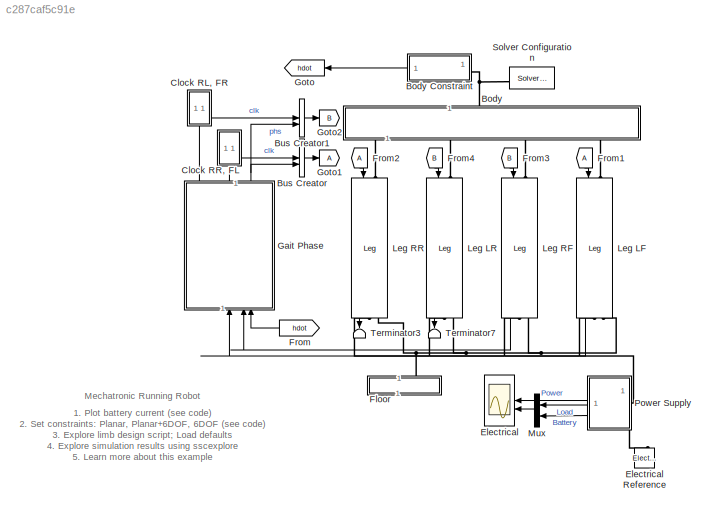
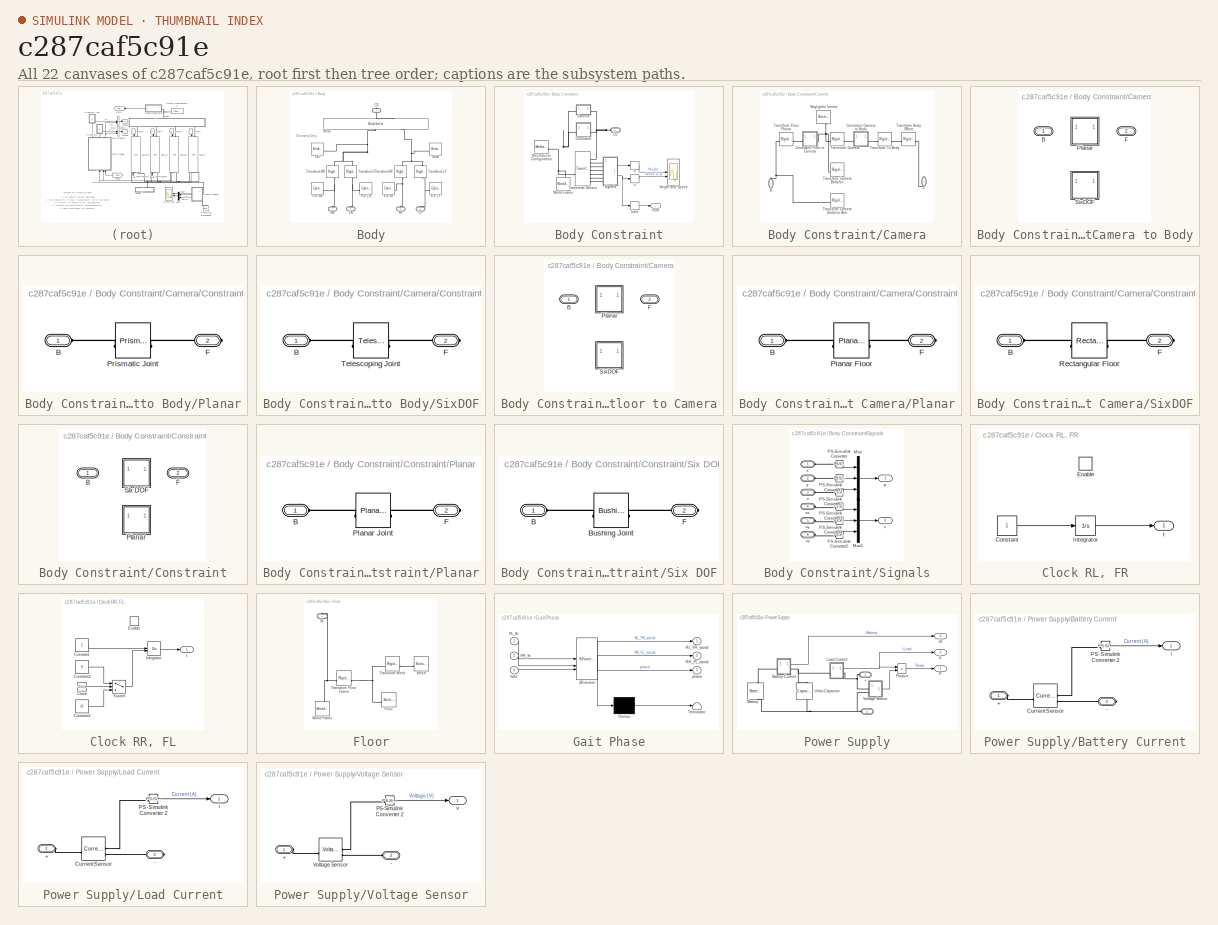
[diagram: thumbnail index - all 22 canvases of the model, root first then tree order]
MODEL slx_c287caf5c91e
KIND model
CONFIG AbsTol = 1e-4
CONFIG EnableMultiTasking = on
CONFIG InitFcn = d2r = pi/180;\nr2d = 180/pi;\nif (~exist('t_final'))\n  sm_robot_run_4legs_param_def_load(bdroot)\nend
CONFIG MaxStep = 0.01
CONFIG SolverName = ode15s
CONFIG StopTime = t_final
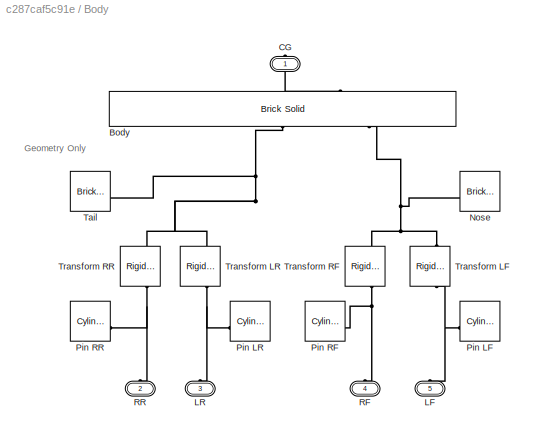
BLOCK [SubSystem] Body
  NameLocation = right
  Tag = CustomStyle
BLOCK [SubSystem] Body Constraint
BLOCK [PMIOPort] Body Constraint/CG
  Side = Left
BLOCK [SubSystem] Body Constraint/Camera
BLOCK [PMIOPort] Body Constraint/Camera/B
  NameLocation = right
  Port = 2
  Side = Left
BLOCK [SubSystem] Body Constraint/Camera/Constraint Camera to Body
  AttributesFormatString = %<ActiveVariant>
  LabelModeActiveChoice = Planar
  Variant = on
  VariantControl = Variant1
  VariantControlMode = label
BLOCK [PMIOPort] Body Constraint/Camera/Constraint Camera to Body/ B 
  Side = Left
BLOCK [PMIOPort] Body Constraint/Camera/Constraint Camera to Body/ F 
  Port = 2
  Side = Right
BLOCK [SubSystem] Body Constraint/Camera/Constraint Camera to Body/Planar
  VariantControl = Planar
BLOCK [PMIOPort] Body Constraint/Camera/Constraint Camera to Body/Planar/B
  Side = Left
BLOCK [PMIOPort] Body Constraint/Camera/Constraint Camera to Body/Planar/F
  Port = 2
  Side = Right
BLOCK [Reference] Body Constraint/Camera/Constraint Camera to Body/Planar/Prismatic Joint  REF=sm_lib/Joints/Prismatic
Joint
  SourceBlock = sm_lib/Joints/Prismatic\nJoint
  SourceType = Prismatic\nJoint
BLOCK [SubSystem] Body Constraint/Camera/Constraint Camera to Body/SixDOF
  VariantControl = Six_DOF
BLOCK [PMIOPort] Body Constraint/Camera/Constraint Camera to Body/SixDOF/B
  Side = Left
BLOCK [PMIOPort] Body Constraint/Camera/Constraint Camera to Body/SixDOF/F
  Port = 2
  Side = Right
BLOCK [Reference] Body Constraint/Camera/Constraint Camera to Body/SixDOF/Telescoping Joint  REF=sm_lib/Joints/Telescoping
Joint
  SourceBlock = sm_lib/Joints/Telescoping\nJoint
  SourceType = Telescoping\nJoint
BLOCK [SubSystem] Body Constraint/Camera/Constraint Floor to Camera
  AttributesFormatString = %<ActiveVariant>
  LabelModeActiveChoice = Planar
  Variant = on
  VariantControl = Variant1
  VariantControlMode = label
BLOCK [PMIOPort] Body Constraint/Camera/Constraint Floor to Camera/ B 
  Side = Left
BLOCK [PMIOPort] Body Constraint/Camera/Constraint Floor to Camera/ F 
  Port = 2
  Side = Right
BLOCK [SubSystem] Body Constraint/Camera/Constraint Floor to Camera/Planar
  VariantControl = Planar
BLOCK [PMIOPort] Body Constraint/Camera/Constraint Floor to Camera/Planar/B
  Side = Left
BLOCK [PMIOPort] Body Constraint/Camera/Constraint Floor to Camera/Planar/F
  Port = 2
  Side = Right
BLOCK [Reference] Body Constraint/Camera/Constraint Floor to Camera/Planar/Planar Floor  REF=sm_lib/Joints/Planar Joint
  SourceBlock = sm_lib/Joints/Planar Joint
  SourceType = Planar Joint
BLOCK [SubSystem] Body Constraint/Camera/Constraint Floor to Camera/SixDOF
  VariantControl = Six_DOF
BLOCK [PMIOPort] Body Constraint/Camera/Constraint Floor to Camera/SixDOF/B
  Side = Left
BLOCK [PMIOPort] Body Constraint/Camera/Constraint Floor to Camera/SixDOF/F
  Port = 2
  Side = Right
BLOCK [Reference] Body Constraint/Camera/Constraint Floor to Camera/SixDOF/Rectangular Floor  REF=sm_lib/Joints/Rectangular
Joint
  SourceBlock = sm_lib/Joints/Rectangular\nJoint
  SourceType = Rectangular\nJoint
BLOCK [PMIOPort] Body Constraint/Camera/F
  NameLocation = left
  Side = Right
BLOCK [Reference] Body Constraint/Camera/Negligible Inertia  REF=sm_lib/Body Elements/Brick Solid
  NameLocation = left
  SourceBlock = sm_lib/Body Elements/Brick Solid
  SourceType = Brick Solid
BLOCK [Reference] Body Constraint/Camera/Transform Body Offset  REF=sm_lib/Frames and
Transforms/Rigid
Transform
  SourceBlock = sm_lib/Frames and\nTransforms/Rigid\nTransform
  SourceType = Rigid\nTransform
BLOCK [Reference] Body Constraint/Camera/Transform Camera  REF=sm_lib/Frames and
Transforms/Rigid
Transform
  SourceBlock = sm_lib/Frames and\nTransforms/Rigid\nTransform
  SourceType = Rigid\nTransform
BLOCK [Reference] Body Constraint/Camera/Transform Camera BodyIso  REF=sm_lib/Frames and
Transforms/Rigid
Transform
  SourceBlock = sm_lib/Frames and\nTransforms/Rigid\nTransform
  SourceType = Rigid\nTransform
BLOCK [Reference] Body Constraint/Camera/Transform Camera BodyIso Aim  REF=sm_lib/Frames and
Transforms/Rigid
Transform
  SourceBlock = sm_lib/Frames and\nTransforms/Rigid\nTransform
  SourceType = Rigid\nTransform
BLOCK [Reference] Body Constraint/Camera/Transform Floor Planar  REF=sm_lib/Frames and
Transforms/Rigid
Transform
  SourceBlock = sm_lib/Frames and\nTransforms/Rigid\nTransform
  SourceType = Rigid\nTransform
BLOCK [Reference] Body Constraint/Camera/Transform To Body  REF=sm_lib/Frames and
Transforms/Rigid
Transform
  SourceBlock = sm_lib/Frames and\nTransforms/Rigid\nTransform
  SourceType = Rigid\nTransform
BLOCK [SubSystem] Body Constraint/Constraint
  AttributesFormatString = %<ActiveVariant>
  LabelModeActiveChoice = Planar
  Variant = on
  VariantControl = Variant1
  VariantControlMode = label
BLOCK [PMIOPort] Body Constraint/Constraint/ B 
  Side = Left
BLOCK [PMIOPort] Body Constraint/Constraint/ F 
  Port = 2
  Side = Right
BLOCK [SubSystem] Body Constraint/Constraint/Planar
  VariantControl = Planar
BLOCK [PMIOPort] Body Constraint/Constraint/Planar/B
  Side = Left
BLOCK [PMIOPort] Body Constraint/Constraint/Planar/F
  Port = 2
  Side = Right
BLOCK [Reference] Body Constraint/Constraint/Planar/Planar Joint  REF=sm_lib/Joints/Planar Joint
  SourceBlock = sm_lib/Joints/Planar Joint
  SourceType = Planar Joint
BLOCK [SubSystem] Body Constraint/Constraint/Six DOF
  VariantControl = Six_DOF
BLOCK [PMIOPort] Body Constraint/Constraint/Six DOF/B
  Side = Left
BLOCK [Reference] Body Constraint/Constraint/Six DOF/Bushing Joint  REF=sm_lib/Joints/Bushing Joint
  SourceBlock = sm_lib/Joints/Bushing Joint
  SourceType = Bushing Joint
BLOCK [PMIOPort] Body Constraint/Constraint/Six DOF/F
  Port = 2
  Side = Right
BLOCK [Scope] Body Constraint/Height and Speed
  ActiveDisplayYMaximum = 1.22878
  ActiveDisplayYMinimum = 0.80791
  DataLogging = on
  DataLoggingDecimateData = on
  DataLoggingDecimation = 1
  DataLoggingSaveFormat = Structure With Time
  DataLoggingVariableName = ScopeData1
  Floating = off
  GraphicalSettings = {"GraphicalSettings":{"LegacySettings":true,"Style":{"AxesScalingProperties":{"ScaleAxesLimitsAtStop":false},"Style":{"AxesColor":"[0 0 0]","ChannelNames":["",""],"ColorOrder":"[1 1 0.0666666666666667;0.0745098039215686 0.623529411764706 1;1 0.411764705882353 0.16078431372549;0.392156862745098 0.831372549019608 0.0745098039215686;0.717647058823529 0.274509803921569 1;0.0588235294117647 1 1;1 0.074...<+482ch>
  LayoutDimensionsString = [2 1]
  MultipleDisplayCache = [{"MaxYLimMag":1.22878,"MaxYLimReal":1.22878,"MinYLimMag":0.80791,"MinYLimReal":0.80791,"PlotAsMagnitudePhase":false,"ShowGrid":true,"ShowLegend":false,"Title":"%<SignalLabel>","YLabel":""},{"MaxYLimMag":1.1633,"MaxYLimReal":3.22318,"MinYLimMag":0.81519,"MinYLimReal":-2.56611,"PlotAsMagnitudePhase":false,"ShowGrid":true,"ShowLegend":false,"Title":"%<SignalLabel>","YLabel":""}]
  NumInputPorts = 2
  WasSavedAsWebScope = on
BLOCK [Reference] Body Constraint/Mechanism Configuration  REF=sm_lib/Utilities/Mechanism
Configuration
  SourceBlock = sm_lib/Utilities/Mechanism\nConfiguration
  SourceType = Mechanism\nConfiguration
BLOCK [SubSystem] Body Constraint/Signals
BLOCK [Mux] Body Constraint/Signals/Mux
  DisplayOption = bar
  Inputs = 3
BLOCK [Mux] Body Constraint/Signals/Mux1
  DisplayOption = bar
  Inputs = 3
BLOCK [Reference] Body Constraint/Signals/PS-Simulink Converter  REF=nesl_utility/PS-Simulink
Converter
  SourceBlock = nesl_utility/PS-Simulink\nConverter
  SourceType = PS-Simulink\nConverter
BLOCK [Reference] Body Constraint/Signals/PS-Simulink Converter1  REF=nesl_utility/PS-Simulink
Converter
  SourceBlock = nesl_utility/PS-Simulink\nConverter
  SourceType = PS-Simulink\nConverter
BLOCK [Reference] Body Constraint/Signals/PS-Simulink Converter2  REF=nesl_utility/PS-Simulink
Converter
  SourceBlock = nesl_utility/PS-Simulink\nConverter
  SourceType = PS-Simulink\nConverter
BLOCK [Reference] Body Constraint/Signals/PS-Simulink Converter3  REF=nesl_utility/PS-Simulink
Converter
  SourceBlock = nesl_utility/PS-Simulink\nConverter
  SourceType = PS-Simulink\nConverter
BLOCK [Reference] Body Constraint/Signals/PS-Simulink Converter4  REF=nesl_utility/PS-Simulink
Converter
  SourceBlock = nesl_utility/PS-Simulink\nConverter
  SourceType = PS-Simulink\nConverter
BLOCK [Reference] Body Constraint/Signals/PS-Simulink Converter5  REF=nesl_utility/PS-Simulink
Converter
  SourceBlock = nesl_utility/PS-Simulink\nConverter
  SourceType = PS-Simulink\nConverter
BLOCK [Outport] Body Constraint/Signals/p
  VectorParamsAs1DForOutWhenUnconnected = off
BLOCK [Outport] Body Constraint/Signals/v
  Port = 2
  VectorParamsAs1DForOutWhenUnconnected = off
BLOCK [PMIOPort] Body Constraint/Signals/vx
  Port = 4
  Side = Left
BLOCK [PMIOPort] Body Constraint/Signals/vy
  Port = 5
  Side = Left
BLOCK [PMIOPort] Body Constraint/Signals/vz
  Port = 6
  Side = Left
BLOCK [PMIOPort] Body Constraint/Signals/x
  Side = Left
BLOCK [PMIOPort] Body Constraint/Signals/y
  Port = 2
  Side = Left
BLOCK [PMIOPort] Body Constraint/Signals/z
  Port = 3
  Side = Left
BLOCK [Reference] Body Constraint/Transform Sensor  REF=sm_lib/Frames and
Transforms/Transform
Sensor
  SourceBlock = sm_lib/Frames and\nTransforms/Transform\nSensor
  SourceType = Transform\nSensor
BLOCK [Reference] Body Constraint/World Frame  REF=sm_lib/Frames and
Transforms/World Frame
  NameLocation = left
  SourceBlock = sm_lib/Frames and\nTransforms/World Frame
  SourceType = World Frame
BLOCK [Selector] Body Constraint/h
  IndexOptions = Index vector (dialog)
  Indices = 2
  InputPortWidth = 3
  NameLocation = top
  OutputSizes = 1
BLOCK [Outport] Body Constraint/hDot
  VectorParamsAs1DForOutWhenUnconnected = off
BLOCK [Selector] Body Constraint/hdot
  IndexOptions = Index vector (dialog)
  Indices = 2
  InputPortWidth = 3
  OutputSizes = 1
BLOCK [Selector] Body Constraint/u
  IndexOptions = Index vector (dialog)
  Indices = [1 2]
  InputPortWidth = 3
  OutputSizes = 1
BLOCK [Reference] Body/Body  REF=sm_lib/Body Elements/Brick Solid
  NameLocation = right
  SourceBlock = sm_lib/Body Elements/Brick Solid
  SourceType = Brick Solid
BLOCK [PMIOPort] Body/CG
  NameLocation = right
  Side = Right
BLOCK [PMIOPort] Body/LF
  NameLocation = right
  Port = 5
  Side = Left
BLOCK [PMIOPort] Body/LR
  NameLocation = right
  Port = 3
  Side = Left
BLOCK [Reference] Body/Nose  REF=sm_lib/Body Elements/Brick Solid
  SourceBlock = sm_lib/Body Elements/Brick Solid
  SourceType = Brick Solid
BLOCK [Reference] Body/Pin LF  REF=sm_lib/Body Elements/Cylindrical Solid
  SourceBlock = sm_lib/Body Elements/Cylindrical Solid
  SourceType = Cylindrical Solid
BLOCK [Reference] Body/Pin LR  REF=sm_lib/Body Elements/Cylindrical Solid
  SourceBlock = sm_lib/Body Elements/Cylindrical Solid
  SourceType = Cylindrical Solid
BLOCK [Reference] Body/Pin RF  REF=sm_lib/Body Elements/Cylindrical Solid
  SourceBlock = sm_lib/Body Elements/Cylindrical Solid
  SourceType = Cylindrical Solid
BLOCK [Reference] Body/Pin RR  REF=sm_lib/Body Elements/Cylindrical Solid
  SourceBlock = sm_lib/Body Elements/Cylindrical Solid
  SourceType = Cylindrical Solid
BLOCK [PMIOPort] Body/RF
  NameLocation = left
  Port = 4
  Side = Left
BLOCK [PMIOPort] Body/RR
  NameLocation = left
  Port = 2
  Side = Left
BLOCK [Reference] Body/Tail  REF=sm_lib/Body Elements/Brick Solid
  SourceBlock = sm_lib/Body Elements/Brick Solid
  SourceType = Brick Solid
BLOCK [Reference] Body/Transform LF  REF=sm_lib/Frames and
Transforms/Rigid
Transform
  NameLocation = right
  SourceBlock = sm_lib/Frames and\nTransforms/Rigid\nTransform
  SourceType = Rigid\nTransform
BLOCK [Reference] Body/Transform LR  REF=sm_lib/Frames and
Transforms/Rigid
Transform
  NameLocation = right
  SourceBlock = sm_lib/Frames and\nTransforms/Rigid\nTransform
  SourceType = Rigid\nTransform
BLOCK [Reference] Body/Transform RF  REF=sm_lib/Frames and
Transforms/Rigid
Transform
  NameLocation = left
  SourceBlock = sm_lib/Frames and\nTransforms/Rigid\nTransform
  SourceType = Rigid\nTransform
BLOCK [Reference] Body/Transform RR  REF=sm_lib/Frames and
Transforms/Rigid
Transform
  NameLocation = left
  SourceBlock = sm_lib/Frames and\nTransforms/Rigid\nTransform
  SourceType = Rigid\nTransform
BLOCK [BusCreator] Bus Creator
  DisplayOption = bar
  InheritFromInputs = on
  Inputs = 2
BLOCK [BusCreator] Bus Creator1
  DisplayOption = bar
  InheritFromInputs = on
  Inputs = 2
BLOCK [SubSystem] Clock RL, FR
  NameLocation = top
  TreatAsAtomicUnit = on
BLOCK [Constant] Clock RL, FR/Constant
BLOCK [EnablePort] Clock RL, FR/Enable
  StatesWhenEnabling = reset
BLOCK [Integrator] Clock RL, FR/Integrator
  InitialCondition = t0
BLOCK [Outport] Clock RL, FR/t
  InitialOutput = [0]
  OutputWhenDisabled = reset
  VectorParamsAs1DForOutWhenUnconnected = off
BLOCK [SubSystem] Clock RR, FL
  NameLocation = top
  TreatAsAtomicUnit = on
BLOCK [Clock] Clock RR, FL/Clock
BLOCK [Constant] Clock RR, FL/Constant
BLOCK [Constant] Clock RR, FL/Constant1
  Value = t0
BLOCK [Constant] Clock RR, FL/Constant2
  Value = 0
BLOCK [EnablePort] Clock RR, FL/Enable
  StatesWhenEnabling = reset
BLOCK [Integrator] Clock RR, FL/Integrator
  InitialCondition = t0
  InitialConditionSource = external
BLOCK [Switch] Clock RR, FL/Switch
  Criteria = u2 > Threshold
  InputSameDT = off
  SaturateOnIntegerOverflow = off
  Threshold = 0.1
BLOCK [Outport] Clock RR, FL/t
  InitialOutput = 0
  OutputWhenDisabled = reset
  VectorParamsAs1DForOutWhenUnconnected = off
BLOCK [Scope] Electrical
  ActiveDisplayYMaximum = 525.06229
  ActiveDisplayYMinimum = -181.58066
  DataLoggingDecimateData = on
  DataLoggingDecimation = 1
  DataLoggingSaveFormat = Structure With Time
  Floating = off
  GraphicalSettings = {"GraphicalSettings":{"LegacySettings":true,"Style":{"AxesScalingProperties":{"ScaleAxesLimitsAtStop":false},"Style":{"AxesColor":"[0 0 0]","ChannelNames":["",""],"ColorOrder":"[1 1 0.0666666666666667;0.0745098039215686 0.623529411764706 1;1 0.411764705882353 0.16078431372549;0.392156862745098 0.831372549019608 0.0745098039215686;0.717647058823529 0.274509803921569 1;0.0588235294117647 1 1;1 0.074...<+457ch>
  LayoutDimensionsString = [2 1]
  MultipleDisplayCache = [{"MaxYLimMag":525.06229,"MaxYLimReal":525.06229,"MinYLimMag":0,"MinYLimReal":-181.58066,"PlotAsMagnitudePhase":false,"ShowGrid":true,"ShowLegend":false,"Title":"%<SignalLabel>","YLabel":""},{"MaxYLimMag":10,"MaxYLimReal":27.98465,"MinYLimMag":0,"MinYLimReal":-8.90007,"PlotAsMagnitudePhase":false,"ShowGrid":true,"ShowLegend":true,"Title":"Current","YLabel":""}]
  NumInputPorts = 2
  WasSavedAsWebScope = on
  WindowPosition = [611 446 348 332]
BLOCK [Reference] Electrical Reference  REF=fl_lib/Electrical/Electrical Elements/Electrical Reference
  NameLocation = left
  SourceBlock = fl_lib/Electrical/Electrical Elements/Electrical Reference
  SourceType = Electrical Reference
BLOCK [SubSystem] Floor
  NameLocation = right
BLOCK [Reference] Floor/Floor  REF=sm_lib/Body Elements/Brick Solid
  NameLocation = top
  SourceBlock = sm_lib/Body Elements/Brick Solid
  SourceType = Brick Solid
BLOCK [Reference] Floor/Mesh  REF=sm_lib/Body Elements/Extruded Solid
  SourceBlock = sm_lib/Body Elements/Extruded Solid
  SourceType = Extruded Solid
BLOCK [Reference] Floor/Transform Floor Frame  REF=sm_lib/Frames and
Transforms/Rigid
Transform
  NameLocation = top
  SourceBlock = sm_lib/Frames and\nTransforms/Rigid\nTransform
  SourceType = Rigid\nTransform
BLOCK [Reference] Floor/Transform Mesh  REF=sm_lib/Frames and
Transforms/Rigid
Transform
  SourceBlock = sm_lib/Frames and\nTransforms/Rigid\nTransform
  SourceType = Rigid\nTransform
BLOCK [PMIOPort] Floor/W
  NameLocation = right
  Side = Right
BLOCK [Reference] Floor/World Frame  REF=sm_lib/Frames and
Transforms/World Frame
  NameLocation = right
  SourceBlock = sm_lib/Frames and\nTransforms/World Frame
  SourceType = World Frame
BLOCK [From] From
  CloseFcn = tagdialog Close
  GotoTag = hdot
  NameLocation = top
  TagVisibility = global
BLOCK [From] From1
  NameLocation = right
BLOCK [From] From2
  NameLocation = left
BLOCK [From] From3
  GotoTag = B
  NameLocation = left
BLOCK [From] From4
  GotoTag = B
  NameLocation = left
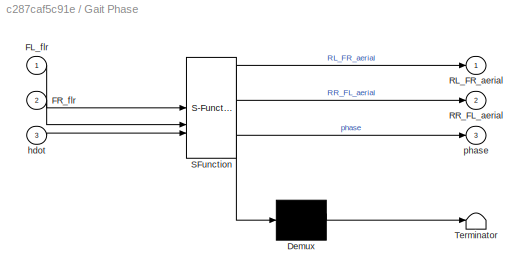
BLOCK [SubSystem] Gait Phase
  ErrorFcn = Stateflow.Translate.translate
  NameLocation = right
  PermitHierarchicalResolution = ExplicitOnly
  SFBlockType = Chart
  Tag = PublishSubsystem
  TreatAsAtomicUnit = on
BLOCK [Demux] Gait Phase/ Demux 
  Outputs = 1
BLOCK [S-Function] Gait Phase/ SFunction 
  EnableBusSupport = off
  FunctionName = sf_sfun
  PortCounts = [3 4]
  SFcnIsStateOwnerBlock = off
  SFunctionDeploymentMode = off
  Tag = Stateflow S-Function 1
BLOCK [Terminator] Gait Phase/ Terminator 
BLOCK [Inport] Gait Phase/FL_flr
BLOCK [Inport] Gait Phase/FR_flr
  Port = 2
BLOCK [Outport] Gait Phase/RL_FR_aerial
  VectorParamsAs1DForOutWhenUnconnected = off
BLOCK [Outport] Gait Phase/RR_FL_aerial
  Port = 2
  VectorParamsAs1DForOutWhenUnconnected = off
BLOCK [Inport] Gait Phase/hdot
  Port = 3
BLOCK [Outport] Gait Phase/phase
  Port = 3
  VectorParamsAs1DForOutWhenUnconnected = off
BLOCK [Goto] Goto
  GotoTag = hdot
  TagVisibility = global
BLOCK [Goto] Goto1
BLOCK [Goto] Goto2
  GotoTag = B
BLOCK [Reference] Leg LF  REF=sm_robot_run_4legs_lib/Leg
  NameLocation = left
  SourceBlock = sm_robot_run_4legs_lib/Leg
  Tag = PublishSubsystemCustomStyle
BLOCK [Reference] Leg LR  REF=sm_robot_run_4legs_lib/Leg
  NameLocation = left
  SourceBlock = sm_robot_run_4legs_lib/Leg
  Tag = CustomStyle
BLOCK [Reference] Leg RF  REF=sm_robot_run_4legs_lib/Leg
  NameLocation = left
  SourceBlock = sm_robot_run_4legs_lib/Leg
  Tag = CustomStyle
BLOCK [Reference] Leg RR  REF=sm_robot_run_4legs_lib/Leg
  NameLocation = left
  SourceBlock = sm_robot_run_4legs_lib/Leg
  Tag = CustomStyle
BLOCK [Mux] Mux
  DisplayOption = bar
  Inputs = 2
BLOCK [SubSystem] Power Supply
  Tag = PublishSubsystem
BLOCK [PMIOPort] Power Supply/+
  Side = Left
BLOCK [PMIOPort] Power Supply/-
  Port = 2
  Side = Left
BLOCK [Reference] Power Supply/Battery  REF=batteryecm_lib/Battery
  NameLocation = right
  SourceBlock = batteryecm_lib/Battery
  SourceType = Battery
BLOCK [SubSystem] Power Supply/Battery Current
BLOCK [PMIOPort] Power Supply/Battery Current/+
  Side = Left
BLOCK [PMIOPort] Power Supply/Battery Current/-
  Port = 2
  Side = Right
BLOCK [Reference] Power Supply/Battery Current/Current Sensor  REF=fl_lib/Electrical/Electrical Sensors/Current Sensor
  SourceBlock = fl_lib/Electrical/Electrical Sensors/Current Sensor
  SourceType = Current Sensor
BLOCK [Reference] Power Supply/Battery Current/PS-Simulink Converter 2  REF=nesl_utility/PS-Simulink
Converter
  SourceBlock = nesl_utility/PS-Simulink\nConverter
  SourceType = PS-Simulink\nConverter
BLOCK [Outport] Power Supply/Battery Current/i
  VectorParamsAs1DForOutWhenUnconnected = off
BLOCK [SubSystem] Power Supply/Load Current
BLOCK [PMIOPort] Power Supply/Load Current/+
  Side = Left
BLOCK [PMIOPort] Power Supply/Load Current/-
  Port = 2
  Side = Right
BLOCK [Reference] Power Supply/Load Current/Current Sensor  REF=fl_lib/Electrical/Electrical Sensors/Current Sensor
  SourceBlock = fl_lib/Electrical/Electrical Sensors/Current Sensor
  SourceType = Current Sensor
BLOCK [Reference] Power Supply/Load Current/PS-Simulink Converter 2  REF=nesl_utility/PS-Simulink
Converter
  SourceBlock = nesl_utility/PS-Simulink\nConverter
  SourceType = PS-Simulink\nConverter
BLOCK [Outport] Power Supply/Load Current/i
  VectorParamsAs1DForOutWhenUnconnected = off
BLOCK [Outport] Power Supply/P
  VectorParamsAs1DForOutWhenUnconnected = off
BLOCK [Product] Power Supply/Product
  RndMeth = Zero
BLOCK [Reference] Power Supply/Ultra Capacitor  REF=fl_lib/Electrical/Electrical Elements/Capacitor
  NameLocation = right
  SourceBlock = fl_lib/Electrical/Electrical Elements/Capacitor
  SourceType = Capacitor
BLOCK [SubSystem] Power Supply/Voltage Sensor
BLOCK [PMIOPort] Power Supply/Voltage Sensor/+
  Side = Left
BLOCK [PMIOPort] Power Supply/Voltage Sensor/-
  Port = 2
  Side = Left
BLOCK [Reference] Power Supply/Voltage Sensor/PS-Simulink Converter 2  REF=nesl_utility/PS-Simulink
Converter
  SourceBlock = nesl_utility/PS-Simulink\nConverter
  SourceType = PS-Simulink\nConverter
BLOCK [Reference] Power Supply/Voltage Sensor/Voltage Sensor  REF=fl_lib/Electrical/Electrical Sensors/Voltage Sensor
  SourceBlock = fl_lib/Electrical/Electrical Sensors/Voltage Sensor
  SourceType = Voltage Sensor
BLOCK [Outport] Power Supply/Voltage Sensor/v
  VectorParamsAs1DForOutWhenUnconnected = off
BLOCK [Outport] Power Supply/iB
  Port = 3
  VectorParamsAs1DForOutWhenUnconnected = off
BLOCK [Outport] Power Supply/iL
  Port = 2
  VectorParamsAs1DForOutWhenUnconnected = off
BLOCK [Reference] Solver Configuration  REF=nesl_utility/Solver
Configuration
  SourceBlock = nesl_utility/Solver\nConfiguration
  SourceType = Solver\nConfiguration
BLOCK [Terminator] Terminator3
  NameLocation = left
BLOCK [Terminator] Terminator7
  NameLocation = left
ANNOTATION (root): 1. Plot battery current ( see code ) 2. Set constraints: Planar , Planar+6DOF , 6DOF ( see code ) 3. Explore limb design script ; Load defaults 4. Explore simulation results using sscexplore 5. Learn more about this example
ANNOTATION (root): Mechatronic Running Robot
ANNOTATION Body: Geometry Only
LINE Body Constraint/Signals/Mux1:1 -> Body Constraint/Signals/v:1
LINE Body Constraint/Signals/Mux:1 -> Body Constraint/Signals/p:1
LINE Body Constraint/Signals/PS-Simulink Converter1:1 -> Body Constraint/Signals/Mux:2
LINE Body Constraint/Signals/PS-Simulink Converter2:1 -> Body Constraint/Signals/Mux:3
LINE Body Constraint/Signals/PS-Simulink Converter3:1 -> Body Constraint/Signals/Mux1:1
LINE Body Constraint/Signals/PS-Simulink Converter4:1 -> Body Constraint/Signals/Mux1:2
LINE Body Constraint/Signals/PS-Simulink Converter5:1 -> Body Constraint/Signals/Mux1:3
LINE Body Constraint/Signals/PS-Simulink Converter:1 -> Body Constraint/Signals/Mux:1
LINE Body Constraint/Signals:1 -> Body Constraint/h:1
NET Body Constraint/Signals:2 -> Body Constraint/hdot:1, Body Constraint/u:1
LINE Body Constraint/h:1 -> Body Constraint/Height and Speed:1
LINE Body Constraint/hdot:1 -> Body Constraint/hDot:1
LINE Body Constraint/u:1 -> Body Constraint/Height and Speed:2
LINE Body Constraint:1 -> Goto:1
LINE Bus Creator1:1 -> Goto2:1
LINE Bus Creator:1 -> Goto1:1
LINE Clock RL, FR/Constant:1 -> Clock RL, FR/Integrator:1
LINE Clock RL, FR/Integrator:1 -> Clock RL, FR/t:1
LINE Clock RL, FR:1 -> Bus Creator1:1
LINE Clock RR, FL/Clock:1 -> Clock RR, FL/Switch:2
LINE Clock RR, FL/Constant1:1 -> Clock RR, FL/Switch:3
LINE Clock RR, FL/Constant2:1 -> Clock RR, FL/Switch:1
LINE Clock RR, FL/Constant:1 -> Clock RR, FL/Integrator:1
LINE Clock RR, FL/Integrator:1 -> Clock RR, FL/t:1
LINE Clock RR, FL/Switch:1 -> Clock RR, FL/Integrator:2
LINE Clock RR, FL:1 -> Bus Creator:1
LINE From1:1 -> Leg LF:1
LINE From2:1 -> Leg RR:1
LINE From3:1 -> Leg RF:1
LINE From4:1 -> Leg LR:1
LINE From:1 -> Gait Phase:3
LINE Gait Phase:1 -> Clock RL, FR:enable
LINE Gait Phase:2 -> Clock RR, FL:enable
NET Gait Phase:3 -> Bus Creator1:2, Bus Creator:2
LINE Leg LF:1 -> Gait Phase:1
LINE Leg LR:1 -> Terminator7:1
LINE Leg RF:1 -> Gait Phase:2
LINE Leg RR:1 -> Terminator3:1
LINE Mux:1 -> Electrical:2
LINE Power Supply/Battery Current/PS-Simulink Converter 2:1 -> Power Supply/Battery Current/i:1
LINE Power Supply/Battery Current:1 -> Power Supply/iB:1
LINE Power Supply/Load Current/PS-Simulink Converter 2:1 -> Power Supply/Load Current/i:1
NET Power Supply/Load Current:1 -> Power Supply/Product:1, Power Supply/iL:1
LINE Power Supply/Product:1 -> Power Supply/P:1
LINE Power Supply/Voltage Sensor/PS-Simulink Converter 2:1 -> Power Supply/Voltage Sensor/v:1
LINE Power Supply/Voltage Sensor:1 -> Power Supply/Product:2
LINE Power Supply:1 -> Electrical:1
LINE Power Supply:2 -> Mux:1
LINE Power Supply:3 -> Mux:2
PNET net1: Body Constraint/CG:RConn1 -- Body Constraint/Camera:RConn1 -- Body Constraint/Constraint:RConn1 -- Body Constraint/Transform Sensor:RConn1
PNET net2: Body Constraint/Camera/B:RConn1 -- Body Constraint/Camera/Transform Camera BodyIso Aim:LConn1 -- Body Constraint/Camera/Transform Floor Planar:LConn1
PLINE Body Constraint/Camera/Constraint Camera to Body/Planar/B:RConn1 -- Body Constraint/Camera/Constraint Camera to Body/Planar/Prismatic Joint:LConn1
PLINE Body Constraint/Camera/Constraint Camera to Body/Planar/F:RConn1 -- Body Constraint/Camera/Constraint Camera to Body/Planar/Prismatic Joint:RConn1
PLINE Body Constraint/Camera/Constraint Camera to Body/SixDOF/B:RConn1 -- Body Constraint/Camera/Constraint Camera to Body/SixDOF/Telescoping Joint:RConn1
PLINE Body Constraint/Camera/Constraint Camera to Body/SixDOF/F:RConn1 -- Body Constraint/Camera/Constraint Camera to Body/SixDOF/Telescoping Joint:LConn1
PLINE Body Constraint/Camera/Constraint Camera to Body:LConn1 -- Body Constraint/Camera/Transform Camera:RConn1
PLINE Body Constraint/Camera/Constraint Camera to Body:RConn1 -- Body Constraint/Camera/Transform To Body:LConn1
PLINE Body Constraint/Camera/Constraint Floor to Camera/Planar/B:RConn1 -- Body Constraint/Camera/Constraint Floor to Camera/Planar/Planar Floor:LConn1
PLINE Body Constraint/Camera/Constraint Floor to Camera/Planar/F:RConn1 -- Body Constraint/Camera/Constraint Floor to Camera/Planar/Planar Floor:RConn1
PLINE Body Constraint/Camera/Constraint Floor to Camera/SixDOF/B:RConn1 -- Body Constraint/Camera/Constraint Floor to Camera/SixDOF/Rectangular Floor:LConn1
PLINE Body Constraint/Camera/Constraint Floor to Camera/SixDOF/F:RConn1 -- Body Constraint/Camera/Constraint Floor to Camera/SixDOF/Rectangular Floor:RConn1
PLINE Body Constraint/Camera/Constraint Floor to Camera:LConn1 -- Body Constraint/Camera/Transform Floor Planar:RConn1
PNET net3: Body Constraint/Camera/Constraint Floor to Camera:RConn1 -- Body Constraint/Camera/Negligible Inertia:RConn1 -- Body Constraint/Camera/Transform Camera BodyIso:LConn1 -- Body Constraint/Camera/Transform Camera:LConn1
PLINE Body Constraint/Camera/F:RConn1 -- Body Constraint/Camera/Transform Body Offset:RConn1
PLINE Body Constraint/Camera/Transform Body Offset:LConn1 -- Body Constraint/Camera/Transform To Body:RConn1
PNET net4: Body Constraint/Camera:LConn1 -- Body Constraint/Constraint:LConn1 -- Body Constraint/Mechanism Configuration:RConn1 -- Body Constraint/Transform Sensor:LConn1 -- Body Constraint/World Frame:RConn1
PLINE Body Constraint/Constraint/Planar/B:RConn1 -- Body Constraint/Constraint/Planar/Planar Joint:LConn1
PLINE Body Constraint/Constraint/Planar/F:RConn1 -- Body Constraint/Constraint/Planar/Planar Joint:RConn1
PLINE Body Constraint/Constraint/Six DOF/B:RConn1 -- Body Constraint/Constraint/Six DOF/Bushing Joint:LConn1
PLINE Body Constraint/Constraint/Six DOF/Bushing Joint:RConn1 -- Body Constraint/Constraint/Six DOF/F:RConn1
PLINE Body Constraint/Signals/PS-Simulink Converter1:LConn1 -- Body Constraint/Signals/y:RConn1
PLINE Body Constraint/Signals/PS-Simulink Converter2:LConn1 -- Body Constraint/Signals/z:RConn1
PLINE Body Constraint/Signals/PS-Simulink Converter3:LConn1 -- Body Constraint/Signals/vx:RConn1
PLINE Body Constraint/Signals/PS-Simulink Converter4:LConn1 -- Body Constraint/Signals/vy:RConn1
PLINE Body Constraint/Signals/PS-Simulink Converter5:LConn1 -- Body Constraint/Signals/vz:RConn1
PLINE Body Constraint/Signals/PS-Simulink Converter:LConn1 -- Body Constraint/Signals/x:RConn1
PLINE Body Constraint/Signals:LConn1 -- Body Constraint/Transform Sensor:RConn2
PLINE Body Constraint/Signals:LConn2 -- Body Constraint/Transform Sensor:RConn3
PLINE Body Constraint/Signals:LConn3 -- Body Constraint/Transform Sensor:RConn4
PLINE Body Constraint/Signals:LConn4 -- Body Constraint/Transform Sensor:RConn5
PLINE Body Constraint/Signals:LConn5 -- Body Constraint/Transform Sensor:RConn6
PLINE Body Constraint/Signals:LConn6 -- Body Constraint/Transform Sensor:RConn7
PNET net5: Body Constraint:LConn1 -- Body:RConn1 -- Solver Configuration:RConn1
PNET net6: Body/Body:LConn1 -- Body/Tail:LConn1 -- Body/Transform LR:LConn1 -- Body/Transform RR:RConn1
PNET net7: Body/Body:LConn2 -- Body/Nose:LConn1 -- Body/Transform LF:LConn1 -- Body/Transform RF:RConn1
PLINE Body/Body:RConn1 -- Body/CG:RConn1
PNET net8: Body/LF:RConn1 -- Body/Pin LF:RConn1 -- Body/Transform LF:RConn1
PNET net9: Body/LR:RConn1 -- Body/Pin LR:RConn1 -- Body/Transform LR:RConn1
PNET net10: Body/Pin RF:LConn1 -- Body/RF:RConn1 -- Body/Transform RF:LConn1
PNET net11: Body/Pin RR:LConn1 -- Body/RR:RConn1 -- Body/Transform RR:LConn1
PLINE Body:LConn1 -- Leg RR:LConn1
PLINE Body:LConn2 -- Leg LR:LConn1
PLINE Body:LConn3 -- Leg RF:LConn1
PLINE Body:LConn4 -- Leg LF:LConn1
PLINE Electrical Reference:LConn1 -- Power Supply:LConn2
PNET net12: Floor/Floor:RConn1 -- Floor/Transform Floor Frame:RConn1 -- Floor/Transform Mesh:LConn1
PLINE Floor/Mesh:RConn1 -- Floor/Transform Mesh:RConn1
PNET net13: Floor/Transform Floor Frame:LConn1 -- Floor/W:RConn1 -- Floor/World Frame:RConn1
PNET net14: Floor:RConn1 -- Leg LF:RConn2 -- Leg LR:RConn2 -- Leg RF:RConn2 -- Leg RR:RConn2
PNET net15: Leg LF:RConn1 -- Leg LR:RConn1 -- Leg RF:RConn1 -- Leg RR:RConn1 -- Power Supply:LConn1
PNET net16: Power Supply/+:RConn1 -- Power Supply/Load Current:RConn1 -- Power Supply/Voltage Sensor:LConn1
PNET net17: Power Supply/-:RConn1 -- Power Supply/Battery:RConn1 -- Power Supply/Ultra Capacitor:RConn1 -- Power Supply/Voltage Sensor:LConn2
PLINE Power Supply/Battery Current/+:RConn1 -- Power Supply/Battery Current/Current Sensor:LConn1
PLINE Power Supply/Battery Current/-:RConn1 -- Power Supply/Battery Current/Current Sensor:RConn2
PLINE Power Supply/Battery Current/Current Sensor:RConn1 -- Power Supply/Battery Current/PS-Simulink Converter 2:LConn1
PLINE Power Supply/Battery Current:LConn1 -- Power Supply/Battery:LConn1
PNET net18: Power Supply/Battery Current:RConn1 -- Power Supply/Load Current:LConn1 -- Power Supply/Ultra Capacitor:LConn1
PLINE Power Supply/Load Current/+:RConn1 -- Power Supply/Load Current/Current Sensor:LConn1
PLINE Power Supply/Load Current/-:RConn1 -- Power Supply/Load Current/Current Sensor:RConn2
PLINE Power Supply/Load Current/Current Sensor:RConn1 -- Power Supply/Load Current/PS-Simulink Converter 2:LConn1
PLINE Power Supply/Voltage Sensor/+:RConn1 -- Power Supply/Voltage Sensor/Voltage Sensor:LConn1
PLINE Power Supply/Voltage Sensor/-:RConn1 -- Power Supply/Voltage Sensor/Voltage Sensor:RConn2
PLINE Power Supply/Voltage Sensor/PS-Simulink Converter 2:LConn1 -- Power Supply/Voltage Sensor/Voltage Sensor:RConn1
note: NET lines group one-source signal fan-out (src -> all destinations, sorted); 1:1 wires keep LINE; PNET lines group multi-terminal physical nets as a canonical sorted terminal list (undirected conserving connections); 2-terminal nets keep the pairwise PLINE form
CHART Gait
Phase states=8 transitions=10
  STATE_LABEL 'Phase2\nentry: phase = 2;\nRL_FR_aerial =1;'
  STATE_LABEL 'Phase1\nentry: phase = 1;'
  STATE_LABEL 'Phase3\nentry: phase = 3;'
  STATE_LABEL 'Phase4\nentry: phase = 4;\nRR_FL_aerial=0;'
  STATE_LABEL 'Phase6\nentry: phase = 6;\nRR_FL_aerial=1;'
  STATE_LABEL 'Phase8\nentry: phase = 8;\nRL_FR_aerial=0;'
  STATE_LABEL 'Phase7\nentry: phase = 7;'
  STATE_LABEL 'Phase5\nentry: phase = 5;'
CHART  states=0 transitions=0
